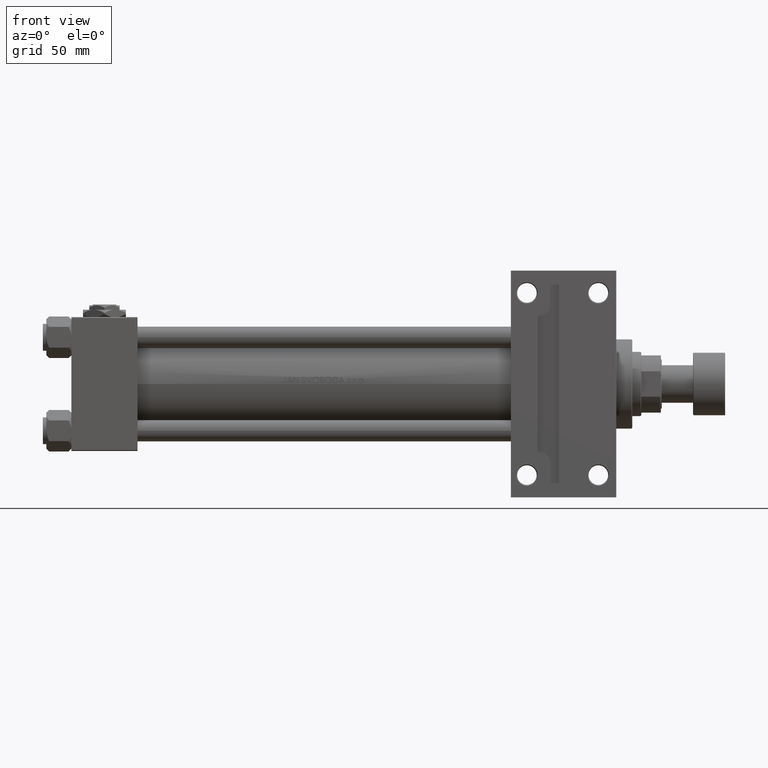
[diagram: clean part render]
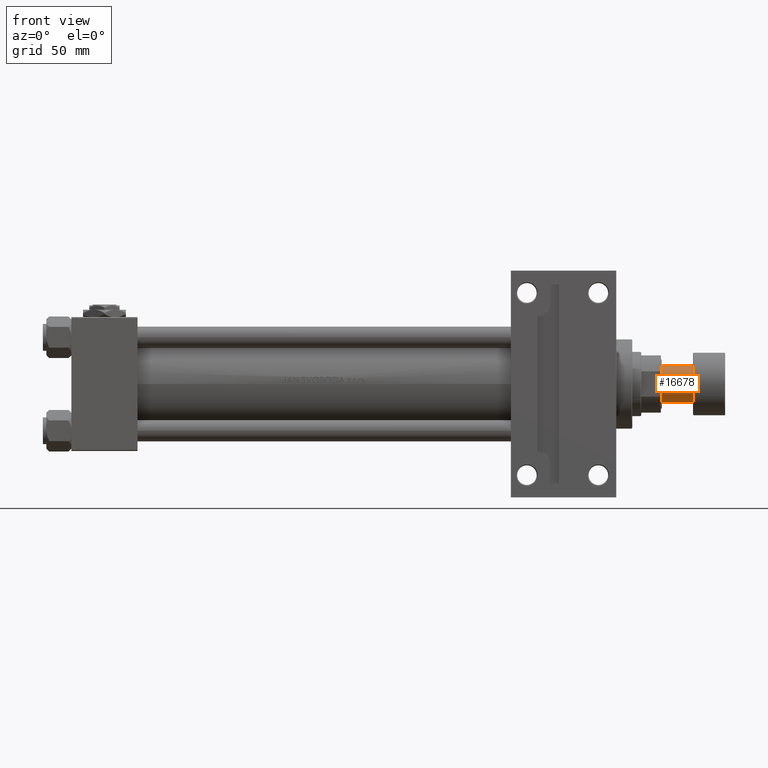
[diagram: same view with one face highlighted and labeled with its STEP entity id]
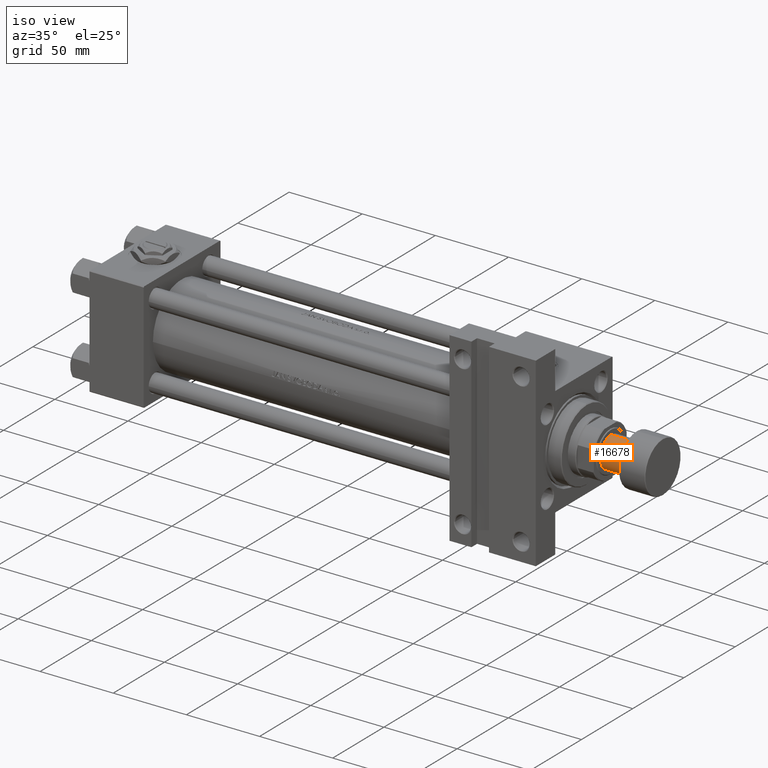
[diagram: same view with one face highlighted and labeled with its STEP entity id]
A machine part, front view. The second image highlights one B-rep face of the part: STEP entity #16678.
A second angle (iso view) of the same face is appended — the face is thin or edge-on in the first view.
In plain terms, the highlighted cylindrical surface (edge-blend (fillet) strip) has radius 10.5 mm, axis along (1, 0, 0).
Its self-contained STEP definition (entity closure, byte-faithful):
#1570 = DIRECTION ( 'NONE',  ( 0.000000000000000000, 0.000000000000000000, -1.000000000000000000 ) ) ;
#1911 = AXIS2_PLACEMENT_3D ( 'NONE', #36819, #1570, #5624 ) ;
#4999 = EDGE_CURVE ( 'NONE', #37217, #49939, #49214, .T. ) ;
#5309 = EDGE_CURVE ( 'NONE', #37217, #49601, #20789, .T. ) ;
#5624 = DIRECTION ( 'NONE',  ( -1.000000000000000000, 0.000000000000000000, 0.000000000000000000 ) ) ;
#10540 = CARTESIAN_POINT ( 'NONE',  ( 0.000000000000000000, 0.000000000000000000, -35.50000000000000711 ) ) ;
#12243 = CARTESIAN_POINT ( 'NONE',  ( -10.50000000000000000, 1.285879139104720831E-15, -35.50000000000000711 ) ) ;
#12395 = EDGE_LOOP ( 'NONE', ( #39952, #47205, #32161, #15299 ) ) ;
#13264 = CIRCLE ( 'NONE', #1911, 10.50000000000000000 ) ;
#13576 = VERTEX_POINT ( 'NONE', #22396 ) ;
#14087 = CARTESIAN_POINT ( 'NONE',  ( 10.50000000000000000, 0.000000000000000000, -18.00000000000000000 ) ) ;
#14104 = CYLINDRICAL_SURFACE ( 'NONE', #21479, 10.50000000000000000 ) ;
#15299 = ORIENTED_EDGE ( 'NONE', *, *, #48709, .T. ) ;
#16678 = ADVANCED_FACE ( 'NONE', ( #37162 ), #14104, .T. ) ;
#18148 = DIRECTION ( 'NONE',  ( -0.000000000000000000, -0.000000000000000000, 1.000000000000000000 ) ) ;
#20789 = LINE ( 'NONE', #29137, #23222 ) ;
#21055 = LINE ( 'NONE', #48192, #33523 ) ;
#21479 = AXIS2_PLACEMENT_3D ( 'NONE', #10540, #18148, #45278 ) ;
#22396 = CARTESIAN_POINT ( 'NONE',  ( -10.50000000000000000, 1.285879139104720831E-15, -18.00000000000000000 ) ) ;
#23222 = VECTOR ( 'NONE', #37001, 1000.000000000000000 ) ;
#24862 = DIRECTION ( 'NONE',  ( -0.000000000000000000, -0.000000000000000000, 1.000000000000000000 ) ) ;
#26676 = AXIS2_PLACEMENT_3D ( 'NONE', #26718, #31282, #30520 ) ;
#26718 = CARTESIAN_POINT ( 'NONE',  ( 0.000000000000000000, 0.000000000000000000, -35.50000000000000711 ) ) ;
#29137 = CARTESIAN_POINT ( 'NONE',  ( 10.50000000000000000, 0.000000000000000000, -35.50000000000000711 ) ) ;
#30520 = DIRECTION ( 'NONE',  ( -1.000000000000000000, 0.000000000000000000, 0.000000000000000000 ) ) ;
#31282 = DIRECTION ( 'NONE',  ( 0.000000000000000000, 0.000000000000000000, -1.000000000000000000 ) ) ;
#32161 = ORIENTED_EDGE ( 'NONE', *, *, #5309, .T. ) ;
#33523 = VECTOR ( 'NONE', #24862, 1000.000000000000000 ) ;
#36819 = CARTESIAN_POINT ( 'NONE',  ( 0.000000000000000000, 0.000000000000000000, -18.00000000000000000 ) ) ;
#37001 = DIRECTION ( 'NONE',  ( -0.000000000000000000, -0.000000000000000000, 1.000000000000000000 ) ) ;
#37162 = FACE_OUTER_BOUND ( 'NONE', #12395, .T. ) ;
#37217 = VERTEX_POINT ( 'NONE', #44613 ) ;
#39952 = ORIENTED_EDGE ( 'NONE', *, *, #50036, .F. ) ;
#44613 = CARTESIAN_POINT ( 'NONE',  ( 10.50000000000000000, 0.000000000000000000, -35.50000000000000711 ) ) ;
#45278 = DIRECTION ( 'NONE',  ( 1.000000000000000000, 0.000000000000000000, 0.000000000000000000 ) ) ;
#47205 = ORIENTED_EDGE ( 'NONE', *, *, #4999, .F. ) ;
#48192 = CARTESIAN_POINT ( 'NONE',  ( -10.50000000000000000, 1.285879139104720831E-15, -35.50000000000000711 ) ) ;
#48709 = EDGE_CURVE ( 'NONE', #49601, #13576, #13264, .T. ) ;
#49214 = CIRCLE ( 'NONE', #26676, 10.50000000000000000 ) ;
#49601 = VERTEX_POINT ( 'NONE', #14087 ) ;
#49939 = VERTEX_POINT ( 'NONE', #12243 ) ;
#50036 = EDGE_CURVE ( 'NONE', #49939, #13576, #21055, .T. ) ;